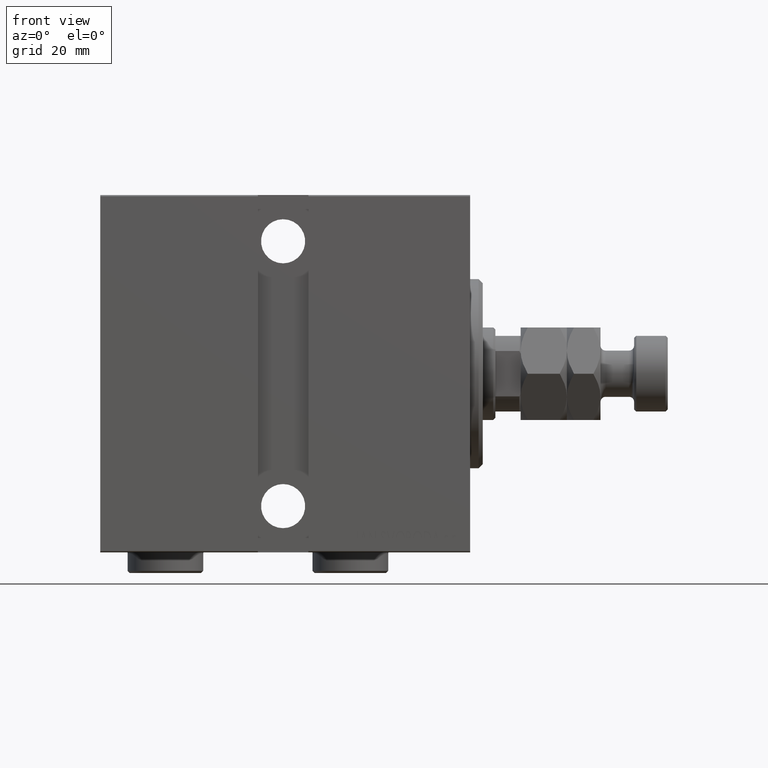
[diagram: clean part render]
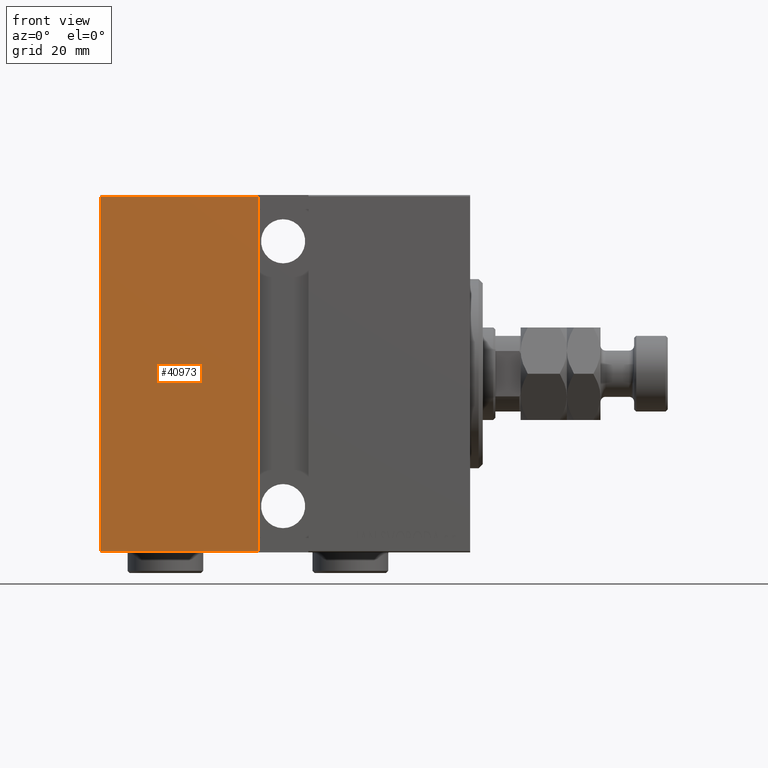
[diagram: same view with one face highlighted and labeled with its STEP entity id]
A machine part, front view. The second image highlights one B-rep face of the part: STEP entity #40973.
In plain terms, the highlighted planar face has unit normal (-0, 1, -0).
Its self-contained STEP definition (entity closure, byte-faithful):
#147 = ORIENTED_EDGE ( 'NONE', *, *, #20649, .F. ) ;
#6852 = EDGE_CURVE ( 'NONE', #24710, #17071, #35364, .T. ) ;
#8112 = DIRECTION ( 'NONE',  ( 0.000000000000000000, 1.632680918566406300E-16, -1.000000000000000000 ) ) ;
#10274 = EDGE_CURVE ( 'NONE', #32903, #17071, #26390, .T. ) ;
#10873 = CARTESIAN_POINT ( 'NONE',  ( 88.00000000000000000, 31.50000000000001421, -42.20000000000000284 ) ) ;
#10876 = CARTESIAN_POINT ( 'NONE',  ( 88.00000000000000000, 31.50000000000000000, 42.20000000000001705 ) ) ;
#12195 = VECTOR ( 'NONE', #43227, 1000.000000000000000 ) ;
#12996 = VERTEX_POINT ( 'NONE', #17524 ) ;
#13860 = EDGE_LOOP ( 'NONE', ( #25371, #30871, #147, #35388 ) ) ;
#15407 = VECTOR ( 'NONE', #37451, 1000.000000000000000 ) ;
#17071 = VERTEX_POINT ( 'NONE', #38235 ) ;
#17324 = VECTOR ( 'NONE', #18997, 1000.000000000000000 ) ;
#17433 = CARTESIAN_POINT ( 'NONE',  ( 88.00000000000000000, 31.50000000000001421, -42.20000000000000284 ) ) ;
#17524 = CARTESIAN_POINT ( 'NONE',  ( 50.49999999999999289, 31.50000000000000711, -42.20000000000000284 ) ) ;
#18997 = DIRECTION ( 'NONE',  ( 0.000000000000000000, -1.632680918566406300E-16, 1.000000000000000000 ) ) ;
#19663 = LINE ( 'NONE', #22897, #15407 ) ;
#20649 = EDGE_CURVE ( 'NONE', #24710, #12996, #19663, .T. ) ;
#20900 = DIRECTION ( 'NONE',  ( -1.000000000000000000, 0.000000000000000000, 0.000000000000000000 ) ) ;
#21269 = PLANE ( 'NONE',  #22365 ) ;
#22207 = VECTOR ( 'NONE', #20900, 1000.000000000000000 ) ;
#22316 = CARTESIAN_POINT ( 'NONE',  ( 50.50000000000000711, 31.50000000000000711, 42.20000000000001705 ) ) ;
#22365 = AXIS2_PLACEMENT_3D ( 'NONE', #24957, #32116, #8112 ) ;
#22897 = CARTESIAN_POINT ( 'NONE',  ( 50.49999999999999289, 31.50000000000000711, -42.50000000000000711 ) ) ;
#24710 = VERTEX_POINT ( 'NONE', #22316 ) ;
#24957 = CARTESIAN_POINT ( 'NONE',  ( 88.00000000000000000, 31.50000000000001421, -42.50000000000000711 ) ) ;
#25371 = ORIENTED_EDGE ( 'NONE', *, *, #10274, .F. ) ;
#26390 = LINE ( 'NONE', #40497, #17324 ) ;
#30871 = ORIENTED_EDGE ( 'NONE', *, *, #34229, .T. ) ;
#32116 = DIRECTION ( 'NONE',  ( 0.000000000000000000, -1.000000000000000000, -1.632680918566406300E-16 ) ) ;
#32903 = VERTEX_POINT ( 'NONE', #10873 ) ;
#34229 = EDGE_CURVE ( 'NONE', #32903, #12996, #41719, .T. ) ;
#35364 = LINE ( 'NONE', #10876, #12195 ) ;
#35388 = ORIENTED_EDGE ( 'NONE', *, *, #6852, .T. ) ;
#37451 = DIRECTION ( 'NONE',  ( -1.632680918566407286E-16, -0.000000000000000000, -1.000000000000000000 ) ) ;
#38235 = CARTESIAN_POINT ( 'NONE',  ( 88.00000000000000000, 31.50000000000000000, 42.20000000000001705 ) ) ;
#39750 = FACE_OUTER_BOUND ( 'NONE', #13860, .T. ) ;
#40497 = CARTESIAN_POINT ( 'NONE',  ( 88.00000000000000000, 31.50000000000001421, -42.50000000000000711 ) ) ;
#40973 = ADVANCED_FACE ( 'NONE', ( #39750 ), #21269, .F. ) ;
#41719 = LINE ( 'NONE', #17433, #22207 ) ;
#43227 = DIRECTION ( 'NONE',  ( 1.000000000000000000, 0.000000000000000000, 0.000000000000000000 ) ) ;